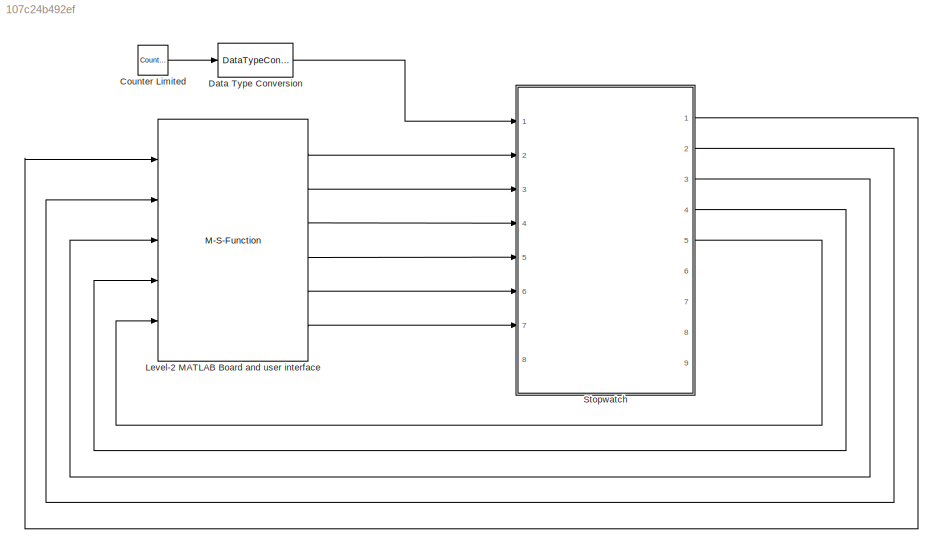
MODEL slx_107c24b492ef
KIND model
CONFIG AbsTol = auto
CONFIG EnableMultiTasking = off
CONFIG FixedStep = auto
CONFIG MaxStep = auto
CONFIG MinStep = auto
CONFIG RelTol = 1e-3
CONFIG SampleTimeConstraint = Unconstrained
CONFIG Solver = ode3
CONFIG SolverName = ode3
CONFIG StartTime = 0.0
CONFIG StopTime = Inf
BLOCK [Reference] Counter Limited  REF=simulink/Sources/Counter
Limited
  Ports = [0, 1]
  SourceBlock = simulink/Sources/Counter\nLimited
  SourceProductBaseCode = SL
  SourceProductName = Simulink
  SourceType = Counter Limited
BLOCK [DataTypeConversion] Data Type Conversion
  OutDataTypeStr = boolean
  RndMeth = Floor
  SaturateOnIntegerOverflow = off
BLOCK [M-S-Function] Level-2 MATLAB Board and user interface
  FunctionName = WI
  Ports = [5, 6]
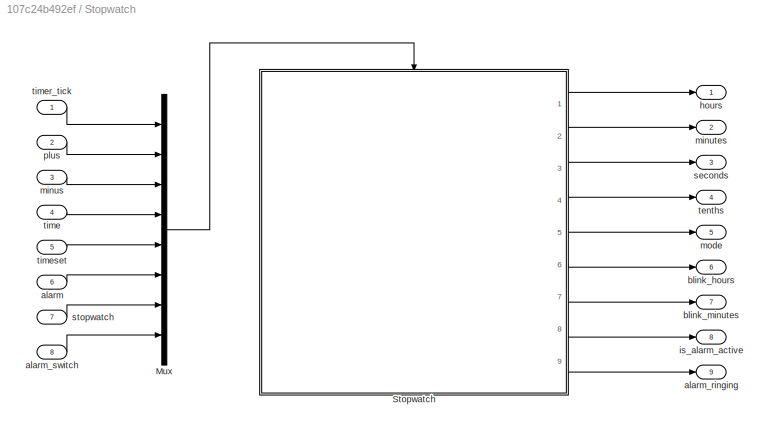
BLOCK [SubSystem] Stopwatch
  Ports = [8, 9]
  RequestExecContextInheritance = off
  Variant = off
BLOCK [Mux] Stopwatch/Mux
  DisplayOption = bar
  Inputs = 8
  Ports = [8, 1]
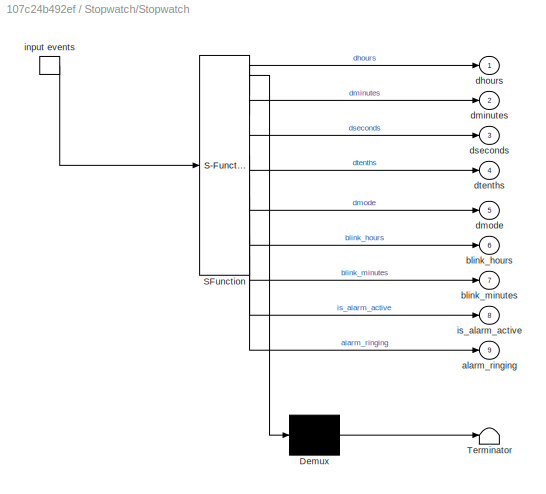
BLOCK [SubSystem] Stopwatch/Stopwatch
  ErrorFcn = Stateflow.Translate.translate
  PermitHierarchicalResolution = ExplicitOnly
  Ports = [0, 9, 0, 1]
  RequestExecContextInheritance = off
  SFBlockType = Chart
  TreatAsAtomicUnit = on
  Variant = off
BLOCK [Demux] Stopwatch/Stopwatch/ Demux 
  Outputs = 1
  Ports = [1, 1]
BLOCK [S-Function] Stopwatch/Stopwatch/ SFunction 
  EnableBusSupport = on
  FunctionName = sf_sfun
  PortCounts = [1 10]
  Ports = [1, 10]
  SFcnIsStateOwnerBlock = off
  SFunctionDeploymentMode = off
  Tag = Stateflow S-Function StopwatchAra2016 3
BLOCK [Terminator] Stopwatch/Stopwatch/ Terminator 
BLOCK [Outport] Stopwatch/Stopwatch/alarm_ringing
  IconDisplay = Port number
  Port = 9
BLOCK [Outport] Stopwatch/Stopwatch/blink_hours
  IconDisplay = Port number
  Port = 6
BLOCK [Outport] Stopwatch/Stopwatch/blink_minutes
  IconDisplay = Port number
  Port = 7
BLOCK [Outport] Stopwatch/Stopwatch/dhours
  IconDisplay = Port number
BLOCK [Outport] Stopwatch/Stopwatch/dminutes
  IconDisplay = Port number
  Port = 2
BLOCK [Outport] Stopwatch/Stopwatch/dmode
  IconDisplay = Port number
  Port = 5
BLOCK [Outport] Stopwatch/Stopwatch/dseconds
  IconDisplay = Port number
  Port = 3
BLOCK [Outport] Stopwatch/Stopwatch/dtenths
  IconDisplay = Port number
  Port = 4
BLOCK [TriggerPort] Stopwatch/Stopwatch/input events
  Ports = [0, 1]
  ShowOutputPort = on
  StatesWhenEnabling = held
  TriggerType = either
  VariantControl = Variant
BLOCK [Outport] Stopwatch/Stopwatch/is_alarm_active
  IconDisplay = Port number
  Port = 8
BLOCK [Inport] Stopwatch/alarm
  IconDisplay = Port number
  Port = 6
BLOCK [Outport] Stopwatch/alarm_ringing
  IconDisplay = Port number
  Port = 9
BLOCK [Inport] Stopwatch/alarm_switch
  IconDisplay = Port number
  Port = 8
BLOCK [Outport] Stopwatch/blink_hours
  IconDisplay = Port number
  Port = 6
BLOCK [Outport] Stopwatch/blink_minutes
  IconDisplay = Port number
  Port = 7
BLOCK [Outport] Stopwatch/hours
  IconDisplay = Port number
BLOCK [Outport] Stopwatch/is_alarm_active
  IconDisplay = Port number
  Port = 8
BLOCK [Inport] Stopwatch/minus
  IconDisplay = Port number
  Port = 3
BLOCK [Outport] Stopwatch/minutes
  IconDisplay = Port number
  Port = 2
BLOCK [Outport] Stopwatch/mode
  IconDisplay = Port number
  Port = 5
BLOCK [Inport] Stopwatch/plus
  IconDisplay = Port number
  Port = 2
BLOCK [Outport] Stopwatch/seconds
  IconDisplay = Port number
  Port = 3
BLOCK [Inport] Stopwatch/stopwatch
  IconDisplay = Port number
  Port = 7
BLOCK [Outport] Stopwatch/tenths
  IconDisplay = Port number
  Port = 4
BLOCK [Inport] Stopwatch/time
  IconDisplay = Port number
  Port = 4
BLOCK [Inport] Stopwatch/timer_tick
  IconDisplay = Port number
BLOCK [Inport] Stopwatch/timeset
  IconDisplay = Port number
  Port = 5
LINE Counter Limited:1 -> Data Type Conversion:1
LINE Data Type Conversion:1 -> Stopwatch:1
LINE Level-2 MATLAB Board and user interface:1 -> Stopwatch:2
LINE Level-2 MATLAB Board and user interface:2 -> Stopwatch:3
LINE Level-2 MATLAB Board and user interface:3 -> Stopwatch:4
LINE Level-2 MATLAB Board and user interface:4 -> Stopwatch:5
LINE Level-2 MATLAB Board and user interface:5 -> Stopwatch:6
LINE Level-2 MATLAB Board and user interface:6 -> Stopwatch:7
LINE Stopwatch/Mux:1 -> Stopwatch/Stopwatch:trigger
LINE Stopwatch/Stopwatch:1 -> Stopwatch/hours:1
LINE Stopwatch/Stopwatch:2 -> Stopwatch/minutes:1
LINE Stopwatch/Stopwatch:3 -> Stopwatch/seconds:1
LINE Stopwatch/Stopwatch:4 -> Stopwatch/tenths:1
LINE Stopwatch/Stopwatch:5 -> Stopwatch/mode:1
LINE Stopwatch/Stopwatch:6 -> Stopwatch/blink_hours:1
LINE Stopwatch/Stopwatch:7 -> Stopwatch/blink_minutes:1
LINE Stopwatch/Stopwatch:8 -> Stopwatch/is_alarm_active:1
LINE Stopwatch/Stopwatch:9 -> Stopwatch/alarm_ringing:1
LINE Stopwatch/alarm:1 -> Stopwatch/Mux:6
LINE Stopwatch/alarm_switch:1 -> Stopwatch/Mux:8
LINE Stopwatch/minus:1 -> Stopwatch/Mux:3
LINE Stopwatch/plus:1 -> Stopwatch/Mux:2
LINE Stopwatch/stopwatch:1 -> Stopwatch/Mux:7
LINE Stopwatch/time:1 -> Stopwatch/Mux:4
LINE Stopwatch/timer_tick:1 -> Stopwatch/Mux:1
LINE Stopwatch/timeset:1 -> Stopwatch/Mux:5
LINE Stopwatch:1 -> Level-2 MATLAB Board and user interface:1
LINE Stopwatch:2 -> Level-2 MATLAB Board and user interface:2
LINE Stopwatch:3 -> Level-2 MATLAB Board and user interface:3
LINE Stopwatch:4 -> Level-2 MATLAB Board and user interface:4
LINE Stopwatch:5 -> Level-2 MATLAB Board and user interface:5
CHART Stopwatch/Stopwatch states=21 transitions=69
  STATE_LABEL 'Control\nen: blink_hours = uint8(0); blink_minutes = uint8(0);'
  STATE_LABEL 'timemode\nen: dmode = uint8(0);\ndu: dhours = hours; dminutes = minutes; dseconds = seconds; dtenths = tenths;'
  STATE_LABEL 'timesetmode\nen: dmode = uint8(1); dhours = hours; dminutes = minutes;\nex: hours = dhours; minutes = dminutes;'
  STATE_LABEL 'setMinutes\nen: blink_minutes = uint8(1);\nex: blink_minutes = uint8(0);'
  STATE_LABEL 'bplus {dminutes = mod(dminutes + 1, 60)}'
  STATE_LABEL 'bminus [dminutes == 0]{dminutes = uint8(59)}'
  STATE_LABEL 'bminus {dminutes = dminutes - 1}'
  STATE_LABEL 'setHours\nen: blink_hours = uint8(1);\nex: blink_hours = uint8(0);'
  STATE_LABEL 'bplus {dhours = mod(dhours + 1, 24)}'
  STATE_LABEL 'bminus [dhours == 0]{dhours = uint8(23)}'
  STATE_LABEL 'bminus {dhours = dhours - 1}'
  STATE_LABEL 'timeset'
  STATE_LABEL 'timeset'
  STATE_LABEL 'alarmmode\nen: dmode = uint8(2); dhours = alarm_hours; dminutes = alarm_minutes;\ndu: dhours = alarm_hours; dminutes = alarm_minutes;'
  STATE_LABEL 'setAlarmHours\nen: blink_hours = uint8(1);\nex: blink_hours = uint8(0);'
  STATE_LABEL 'bplus {alarm_hours = mod(alarm_hours + 1, 24)}'
  STATE_LABEL 'bminus [alarm_hours == 0]{alarm_hours = uint8(23)}'
  STATE_LABEL 'bminus {alarm_hours = alarm_hours - 1}'
  STATE_LABEL 'setAlarmMinutes\nen: blink_minutes = uint8(1);\nex: blink_minutes = uint8(0);'
  STATE_LABEL 'bplus {alarm_minutes = mod(alarm_minutes + 1, 60)}'
  STATE_LABEL 'bminus [alarm_minutes == 0]{alarm_minutes = uint8(59)}'
  STATE_LABEL 'bminus {alarm_minutes = alarm_minutes - 1}'
  STATE_LABEL 'alarm'
  STATE_LABEL 'alarm'
  STATE_LABEL 'stopwatchmode\nen: dmode = uint8(3);'
  STATE_LABEL 'stopwatchOff\nen: s_hours = uint8(0); s_minutes = uint8(0); s_seconds = uint8(0); s_tenths = uint8(0); dtenths = s_tenths; dseconds = s_seconds; dminutes = s_minutes; dhours = s_hours;'
  STATE_LABEL 'stopwatchRunning\nen: s_running = uint8(1);\nex: s_running = uint8(0);'
  STATE_LABEL 'running\ndu: dtenths = s_tenths; dseconds = s_seconds; dminutes = s_minutes; dhours = s_hours;'
  STATE_LABEL 'showLap'
  STATE_LABEL 'bminus'
  STATE_LABEL 'bminus'
  STATE_LABEL 'stopwatchPaused\nen: dtenths = s_tenths; dseconds = s_seconds; dminutes = s_minutes; dhours = s_hours;\n'
  STATE_LABEL 'stopwatch'
  STATE_LABEL 'bplus'
  STATE_LABEL 'bplus'
  STATE_LABEL 'bplus'
  STATE_LABEL 'stopwatch'
  STATE_LABEL 'timeset'
  STATE_LABEL 'time'
  STATE_LABEL 'alarm'
